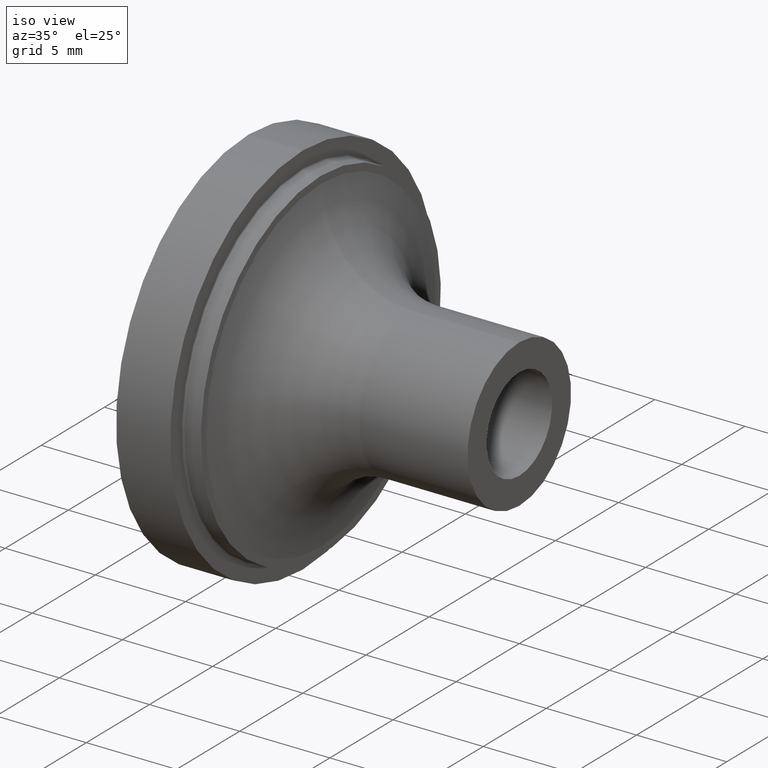
[diagram: clean part render]
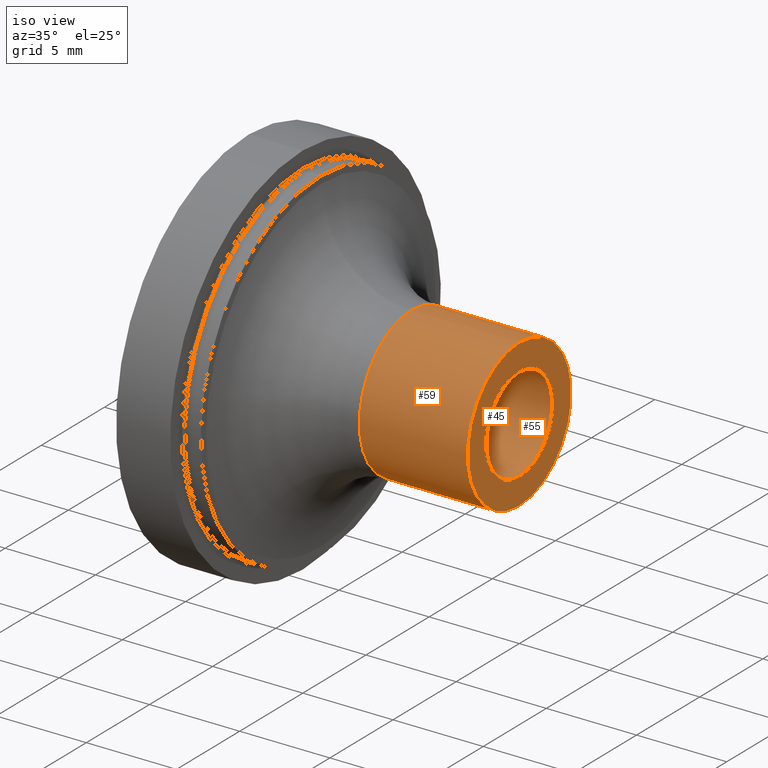
[diagram: same view with one multi-face feature highlighted, each face labeled with its STEP entity id]
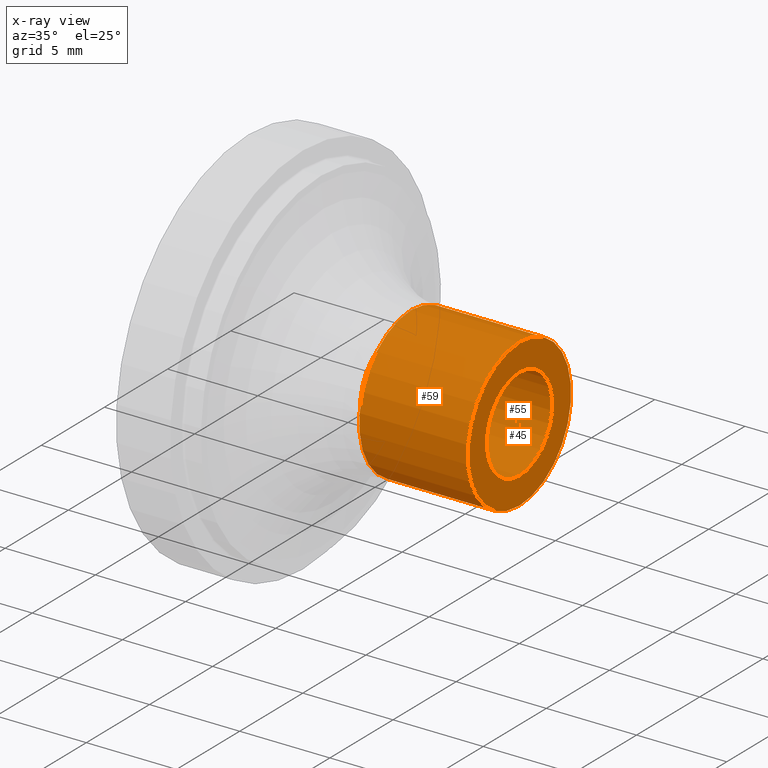
[diagram: x-ray of the same camera — body ghosted, the whole feature saturated]
A machine part, iso view. The highlighted faces form ONE feature: a stepped (counterbored) hole: 2 coaxial cylindrical walls of radii 2.6 -> 4.1 mm joined by 1 annular planar shoulder face(s). The faces share edges in the B-rep.
The next image is the same camera in x-ray: the body ghosted and the whole hole feature saturated, so the bore chain is visible through the body.
Their STEP definitions:
[1] entity #59 (Cylinder):
#59 = ADVANCED_FACE( '', ( #124, #125 ), #126, .T. );
#124 = FACE_OUTER_BOUND( '', #183, .T. );
#125 = FACE_OUTER_BOUND( '', #184, .T. );
#126 = CYLINDRICAL_SURFACE( '', #185, 4.10000000000000 );
#183 = EDGE_LOOP( '', ( #258 ) );
#184 = EDGE_LOOP( '', ( #259 ) );
#185 = AXIS2_PLACEMENT_3D( '', #260, #261, #262 );
#258 = ORIENTED_EDGE( '', *, *, #276, .F. );
#259 = ORIENTED_EDGE( '', *, *, #281, .T. );
#260 = CARTESIAN_POINT( '', ( -60.0000000000000, 0.000000000000000, 0.000000000000000 ) );
#261 = DIRECTION( '', ( 1.00000000000000, -0.000000000000000, -0.000000000000000 ) );
#262 = DIRECTION( '', ( 0.000000000000000, 0.000000000000000, 1.00000000000000 ) );
#276 = EDGE_CURVE( '', #306, #306, #307, .T. );
#281 = EDGE_CURVE( '', #314, #314, #315, .T. );
#306 = VERTEX_POINT( '', #345 );
#307 = CIRCLE( '', #346, 4.10000000000000 );
#314 = VERTEX_POINT( '', #353 );
#315 = CIRCLE( '', #354, 4.10000000000000 );
#345 = CARTESIAN_POINT( '', ( 9.00000000000000, 0.000000000000000, 4.10000000000000 ) );
#346 = AXIS2_PLACEMENT_3D( '', #385, #386, #387 );
#353 = CARTESIAN_POINT( '', ( 15.0000000000000, 0.000000000000000, 4.10000000000000 ) );
#354 = AXIS2_PLACEMENT_3D( '', #394, #395, #396 );
#385 = CARTESIAN_POINT( '', ( 9.00000000000000, 0.000000000000000, 0.000000000000000 ) );
#386 = DIRECTION( '', ( -1.00000000000000, 0.000000000000000, 0.000000000000000 ) );
#387 = DIRECTION( '', ( 0.000000000000000, 0.000000000000000, 1.00000000000000 ) );
#394 = CARTESIAN_POINT( '', ( 15.0000000000000, 0.000000000000000, 0.000000000000000 ) );
#395 = DIRECTION( '', ( -1.00000000000000, 0.000000000000000, 0.000000000000000 ) );
#396 = DIRECTION( '', ( 0.000000000000000, 0.000000000000000, 1.00000000000000 ) );
[2] entity #55 (Cylinder):
#55 = ADVANCED_FACE( '', ( #116, #117 ), #118, .F. );
#116 = FACE_OUTER_BOUND( '', #175, .T. );
#117 = FACE_OUTER_BOUND( '', #176, .T. );
#118 = CYLINDRICAL_SURFACE( '', #177, 2.60000000000000 );
#175 = EDGE_LOOP( '', ( #246 ) );
#176 = EDGE_LOOP( '', ( #247 ) );
#177 = AXIS2_PLACEMENT_3D( '', #248, #249, #250 );
#246 = ORIENTED_EDGE( '', *, *, #280, .F. );
#247 = ORIENTED_EDGE( '', *, *, #291, .T. );
#248 = CARTESIAN_POINT( '', ( 0.000000000000000, 0.000000000000000, 3.67273485929464E-015 ) );
#249 = DIRECTION( '', ( -1.00000000000000, -0.000000000000000, 0.000000000000000 ) );
#250 = DIRECTION( '', ( 0.000000000000000, 0.000000000000000, 1.00000000000000 ) );
#280 = EDGE_CURVE( '', #312, #312, #313, .T. );
#291 = EDGE_CURVE( '', #329, #329, #330, .T. );
#312 = VERTEX_POINT( '', #351 );
#313 = CIRCLE( '', #352, 2.60000000000000 );
#329 = VERTEX_POINT( '', #368 );
#330 = CIRCLE( '', #369, 2.60000000000000 );
#351 = CARTESIAN_POINT( '', ( 15.0000000000000, 0.000000000000000, 2.60000000000000 ) );
#352 = AXIS2_PLACEMENT_3D( '', #391, #392, #393 );
#368 = CARTESIAN_POINT( '', ( 8.00000000000000, 0.000000000000000, 2.60000000000000 ) );
#369 = AXIS2_PLACEMENT_3D( '', #409, #410, #411 );
#391 = CARTESIAN_POINT( '', ( 15.0000000000000, 0.000000000000000, 3.67273485929464E-015 ) );
#392 = DIRECTION( '', ( -1.00000000000000, 0.000000000000000, 0.000000000000000 ) );
#393 = DIRECTION( '', ( 0.000000000000000, 0.000000000000000, 1.00000000000000 ) );
#409 = CARTESIAN_POINT( '', ( 8.00000000000000, 0.000000000000000, 0.000000000000000 ) );
#410 = DIRECTION( '', ( -1.00000000000000, 0.000000000000000, 0.000000000000000 ) );
#411 = DIRECTION( '', ( 0.000000000000000, 0.000000000000000, 1.00000000000000 ) );
[3] entity #45 (Plane):
#45 = ADVANCED_FACE( '', ( #96, #97 ), #98, .F. );
#96 = FACE_BOUND( '', #155, .T. );
#97 = FACE_OUTER_BOUND( '', #156, .T. );
#98 = PLANE( '', #157 );
#155 = EDGE_LOOP( '', ( #216 ) );
#156 = EDGE_LOOP( '', ( #217 ) );
#157 = AXIS2_PLACEMENT_3D( '', #218, #219, #220 );
#216 = ORIENTED_EDGE( '', *, *, #280, .T. );
#217 = ORIENTED_EDGE( '', *, *, #281, .F. );
#218 = CARTESIAN_POINT( '', ( 15.0000000000000, 0.000000000000000, 0.000000000000000 ) );
#219 = DIRECTION( '', ( -1.00000000000000, 0.000000000000000, 0.000000000000000 ) );
#220 = DIRECTION( '', ( 0.000000000000000, 0.000000000000000, 1.00000000000000 ) );
#280 = EDGE_CURVE( '', #312, #312, #313, .T. );
#281 = EDGE_CURVE( '', #314, #314, #315, .T. );
#312 = VERTEX_POINT( '', #351 );
#313 = CIRCLE( '', #352, 2.60000000000000 );
#314 = VERTEX_POINT( '', #353 );
#315 = CIRCLE( '', #354, 4.10000000000000 );
#351 = CARTESIAN_POINT( '', ( 15.0000000000000, 0.000000000000000, 2.60000000000000 ) );
#352 = AXIS2_PLACEMENT_3D( '', #391, #392, #393 );
#353 = CARTESIAN_POINT( '', ( 15.0000000000000, 0.000000000000000, 4.10000000000000 ) );
#354 = AXIS2_PLACEMENT_3D( '', #394, #395, #396 );
#391 = CARTESIAN_POINT( '', ( 15.0000000000000, 0.000000000000000, 3.67273485929464E-015 ) );
#392 = DIRECTION( '', ( -1.00000000000000, 0.000000000000000, 0.000000000000000 ) );
#393 = DIRECTION( '', ( 0.000000000000000, 0.000000000000000, 1.00000000000000 ) );
#394 = CARTESIAN_POINT( '', ( 15.0000000000000, 0.000000000000000, 0.000000000000000 ) );
#395 = DIRECTION( '', ( -1.00000000000000, 0.000000000000000, 0.000000000000000 ) );
#396 = DIRECTION( '', ( 0.000000000000000, 0.000000000000000, 1.00000000000000 ) );